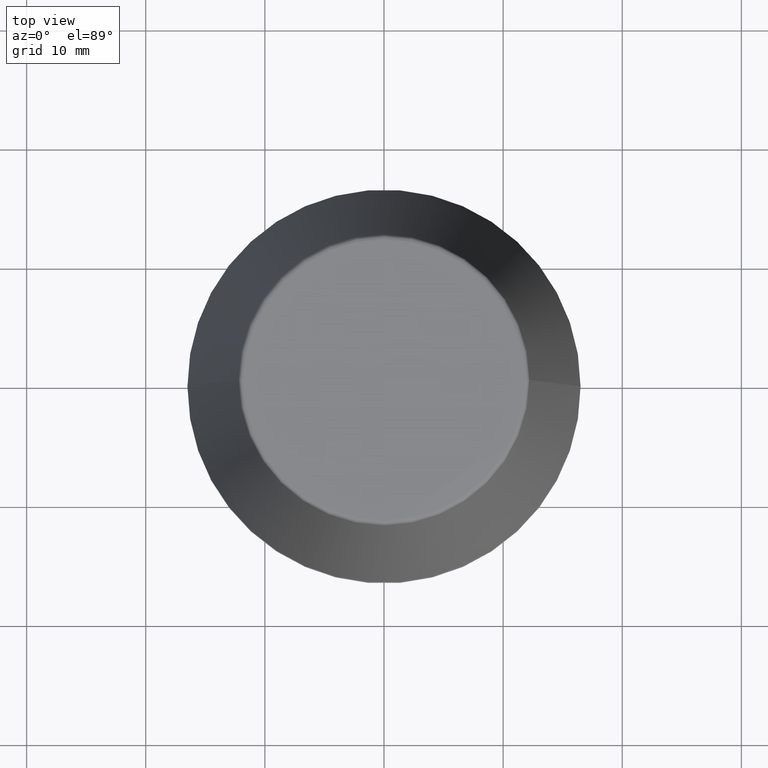
[diagram: clean part render]
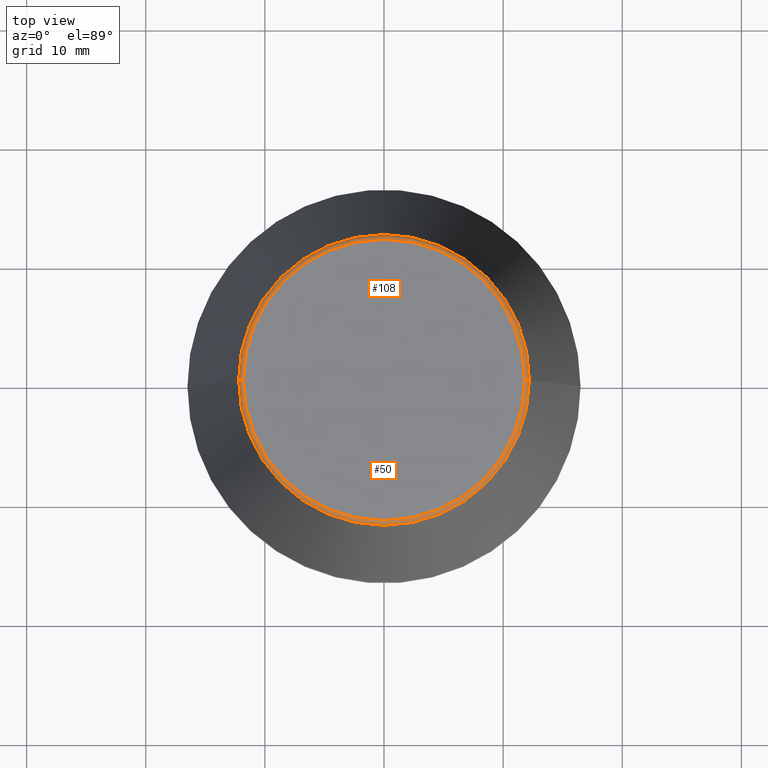
[diagram: same view with one multi-face feature highlighted, each face labeled with its STEP entity id]
A machine part, top view. The highlighted faces form ONE feature: a constant-radius fillet chain: 2 tangent blend faces with common blend radius 0.4 mm. The faces share edges in the B-rep.
Their STEP definitions:
[1] entity #50 (Torus):
#12 = AXIS2_PLACEMENT_3D ( 'NONE', #222, #170, #32 ) ;
#16 = CIRCLE ( 'NONE', #240, 11.80989888411031400 ) ;
#29 = VERTEX_POINT ( 'NONE', #343 ) ;
#32 = DIRECTION ( 'NONE',  ( 1.000000000000000000, 0.0000000000000000000, 0.0000000000000000000 ) ) ;
#47 = ORIENTED_EDGE ( 'NONE', *, *, #160, .T. ) ;
#48 = EDGE_LOOP ( 'NONE', ( #96, #128, #47, #373 ) ) ;
#50 = ADVANCED_FACE ( 'NONE', ( #357 ), #168, .T. ) ;
#52 = AXIS2_PLACEMENT_3D ( 'NONE', #169, #55, #289 ) ;
#55 = DIRECTION ( 'NONE',  ( -0.0000000000000000000, -0.0000000000000000000, 1.000000000000000000 ) ) ;
#90 = DIRECTION ( 'NONE',  ( 1.000000000000000000, 0.0000000000000000000, 0.0000000000000000000 ) ) ;
#96 = ORIENTED_EDGE ( 'NONE', *, *, #192, .F. ) ;
#116 = AXIS2_PLACEMENT_3D ( 'NONE', #370, #150, #183 ) ;
#128 = ORIENTED_EDGE ( 'NONE', *, *, #261, .T. ) ;
#150 = DIRECTION ( 'NONE',  ( 1.224646799147353200E-016, 1.000000000000000000, 0.0000000000000000000 ) ) ;
#160 = EDGE_CURVE ( 'NONE', #221, #331, #374, .T. ) ;
#163 = DIRECTION ( 'NONE',  ( -0.0000000000000000000, -0.0000000000000000000, 1.000000000000000000 ) ) ;
#168 = TOROIDAL_SURFACE ( 'NONE', #52, 11.80989888411031400, 0.4000000000000026900 ) ;
#169 = CARTESIAN_POINT ( 'NONE',  ( 0.0000000000000000000, 0.0000000000000000000, 39.60000000000000100 ) ) ;
#170 = DIRECTION ( 'NONE',  ( -0.0000000000000000000, -0.0000000000000000000, 1.000000000000000000 ) ) ;
#183 = DIRECTION ( 'NONE',  ( -1.000000000000000000, 1.224646799147352500E-016, 0.0000000000000000000 ) ) ;
#192 = EDGE_CURVE ( 'NONE', #29, #382, #359, .T. ) ;
#193 = CARTESIAN_POINT ( 'NONE',  ( 11.80989888411031400, 0.0000000000000000000, 39.60000000000000100 ) ) ;
#195 = CARTESIAN_POINT ( 'NONE',  ( 0.0000000000000000000, 0.0000000000000000000, 40.00000000000000700 ) ) ;
#221 = VERTEX_POINT ( 'NONE', #354 ) ;
#222 = CARTESIAN_POINT ( 'NONE',  ( 0.0000000000000000000, 0.0000000000000000000, 39.65566924038402900 ) ) ;
#233 = DIRECTION ( 'NONE',  ( 0.0000000000000000000, -1.000000000000000000, 0.0000000000000000000 ) ) ;
#240 = AXIS2_PLACEMENT_3D ( 'NONE', #195, #163, #90 ) ;
#259 = CARTESIAN_POINT ( 'NONE',  ( 11.80989888411031400, 0.0000000000000000000, 40.00000000000000700 ) ) ;
#261 = EDGE_CURVE ( 'NONE', #29, #221, #387, .T. ) ;
#289 = DIRECTION ( 'NONE',  ( 1.000000000000000000, 0.0000000000000000000, 0.0000000000000000000 ) ) ;
#318 = DIRECTION ( 'NONE',  ( 0.0000000000000000000, 0.0000000000000000000, -1.000000000000000000 ) ) ;
#331 = VERTEX_POINT ( 'NONE', #259 ) ;
#342 = CARTESIAN_POINT ( 'NONE',  ( -11.80989888411031400, 1.470550059081603400E-015, 40.00000000000000700 ) ) ;
#343 = CARTESIAN_POINT ( 'NONE',  ( -12.20600611160694300, 0.0000000000000000000, 39.65566924038402900 ) ) ;
#346 = EDGE_CURVE ( 'NONE', #382, #331, #16, .T. ) ;
#354 = CARTESIAN_POINT ( 'NONE',  ( 12.20600611160694300, 1.757755848304969800E-015, 39.65566924038402900 ) ) ;
#357 = FACE_OUTER_BOUND ( 'NONE', #48, .T. ) ;
#359 = CIRCLE ( 'NONE', #116, 0.4000000000000028000 ) ;
#368 = AXIS2_PLACEMENT_3D ( 'NONE', #193, #233, #318 ) ;
#370 = CARTESIAN_POINT ( 'NONE',  ( -11.80989888411031400, 1.446295486667959300E-015, 39.60000000000000100 ) ) ;
#373 = ORIENTED_EDGE ( 'NONE', *, *, #346, .F. ) ;
#374 = CIRCLE ( 'NONE', #368, 0.4000000000000045200 ) ;
#382 = VERTEX_POINT ( 'NONE', #342 ) ;
#387 = CIRCLE ( 'NONE', #12, 12.20600611160694300 ) ;
[2] entity #108 (Torus):
#13 = CIRCLE ( 'NONE', #72, 11.80989888411031400 ) ;
#29 = VERTEX_POINT ( 'NONE', #343 ) ;
#51 = AXIS2_PLACEMENT_3D ( 'NONE', #279, #124, #305 ) ;
#56 = FACE_OUTER_BOUND ( 'NONE', #257, .T. ) ;
#59 = ORIENTED_EDGE ( 'NONE', *, *, #308, .T. ) ;
#72 = AXIS2_PLACEMENT_3D ( 'NONE', #165, #110, #94 ) ;
#85 = AXIS2_PLACEMENT_3D ( 'NONE', #263, #139, #224 ) ;
#91 = CIRCLE ( 'NONE', #51, 12.20600611160694300 ) ;
#94 = DIRECTION ( 'NONE',  ( 1.000000000000000000, 0.0000000000000000000, 0.0000000000000000000 ) ) ;
#108 = ADVANCED_FACE ( 'NONE', ( #56 ), #136, .T. ) ;
#110 = DIRECTION ( 'NONE',  ( -0.0000000000000000000, -0.0000000000000000000, 1.000000000000000000 ) ) ;
#116 = AXIS2_PLACEMENT_3D ( 'NONE', #370, #150, #183 ) ;
#124 = DIRECTION ( 'NONE',  ( -0.0000000000000000000, -0.0000000000000000000, 1.000000000000000000 ) ) ;
#136 = TOROIDAL_SURFACE ( 'NONE', #85, 11.80989888411031400, 0.4000000000000026900 ) ;
#139 = DIRECTION ( 'NONE',  ( -0.0000000000000000000, -0.0000000000000000000, 1.000000000000000000 ) ) ;
#150 = DIRECTION ( 'NONE',  ( 1.224646799147353200E-016, 1.000000000000000000, 0.0000000000000000000 ) ) ;
#160 = EDGE_CURVE ( 'NONE', #221, #331, #374, .T. ) ;
#165 = CARTESIAN_POINT ( 'NONE',  ( 0.0000000000000000000, 0.0000000000000000000, 40.00000000000000700 ) ) ;
#166 = EDGE_CURVE ( 'NONE', #331, #382, #13, .T. ) ;
#183 = DIRECTION ( 'NONE',  ( -1.000000000000000000, 1.224646799147352500E-016, 0.0000000000000000000 ) ) ;
#192 = EDGE_CURVE ( 'NONE', #29, #382, #359, .T. ) ;
#193 = CARTESIAN_POINT ( 'NONE',  ( 11.80989888411031400, 0.0000000000000000000, 39.60000000000000100 ) ) ;
#209 = ORIENTED_EDGE ( 'NONE', *, *, #166, .F. ) ;
#221 = VERTEX_POINT ( 'NONE', #354 ) ;
#224 = DIRECTION ( 'NONE',  ( 1.000000000000000000, 0.0000000000000000000, 0.0000000000000000000 ) ) ;
#233 = DIRECTION ( 'NONE',  ( 0.0000000000000000000, -1.000000000000000000, 0.0000000000000000000 ) ) ;
#257 = EDGE_LOOP ( 'NONE', ( #59, #270, #209, #320 ) ) ;
#259 = CARTESIAN_POINT ( 'NONE',  ( 11.80989888411031400, 0.0000000000000000000, 40.00000000000000700 ) ) ;
#263 = CARTESIAN_POINT ( 'NONE',  ( 0.0000000000000000000, 0.0000000000000000000, 39.60000000000000100 ) ) ;
#270 = ORIENTED_EDGE ( 'NONE', *, *, #192, .T. ) ;
#279 = CARTESIAN_POINT ( 'NONE',  ( 0.0000000000000000000, 0.0000000000000000000, 39.65566924038402900 ) ) ;
#305 = DIRECTION ( 'NONE',  ( 1.000000000000000000, 0.0000000000000000000, 0.0000000000000000000 ) ) ;
#308 = EDGE_CURVE ( 'NONE', #221, #29, #91, .T. ) ;
#318 = DIRECTION ( 'NONE',  ( 0.0000000000000000000, 0.0000000000000000000, -1.000000000000000000 ) ) ;
#320 = ORIENTED_EDGE ( 'NONE', *, *, #160, .F. ) ;
#331 = VERTEX_POINT ( 'NONE', #259 ) ;
#342 = CARTESIAN_POINT ( 'NONE',  ( -11.80989888411031400, 1.470550059081603400E-015, 40.00000000000000700 ) ) ;
#343 = CARTESIAN_POINT ( 'NONE',  ( -12.20600611160694300, 0.0000000000000000000, 39.65566924038402900 ) ) ;
#354 = CARTESIAN_POINT ( 'NONE',  ( 12.20600611160694300, 1.757755848304969800E-015, 39.65566924038402900 ) ) ;
#359 = CIRCLE ( 'NONE', #116, 0.4000000000000028000 ) ;
#368 = AXIS2_PLACEMENT_3D ( 'NONE', #193, #233, #318 ) ;
#370 = CARTESIAN_POINT ( 'NONE',  ( -11.80989888411031400, 1.446295486667959300E-015, 39.60000000000000100 ) ) ;
#374 = CIRCLE ( 'NONE', #368, 0.4000000000000045200 ) ;
#382 = VERTEX_POINT ( 'NONE', #342 ) ;